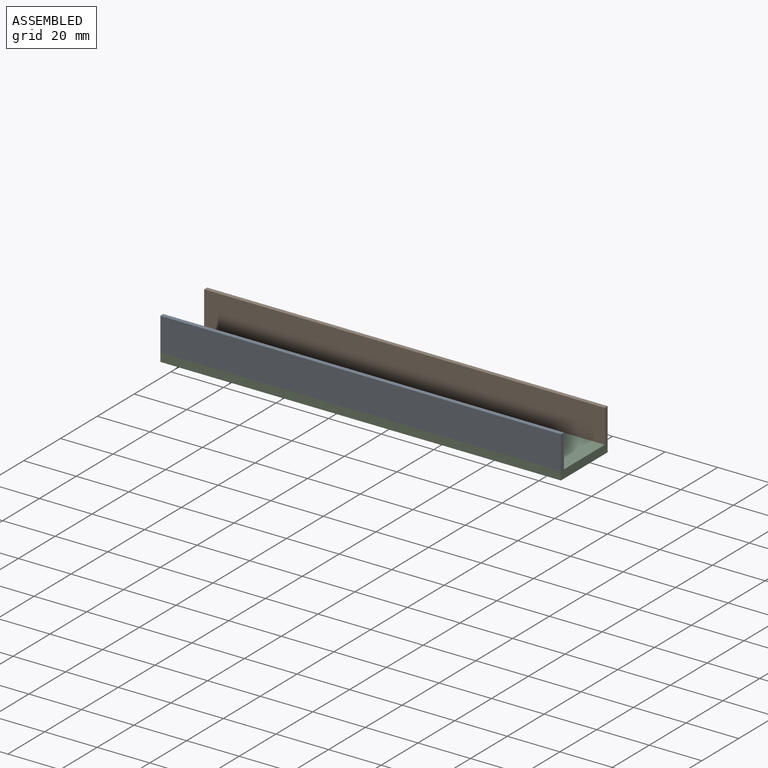
[diagram: assembled view]
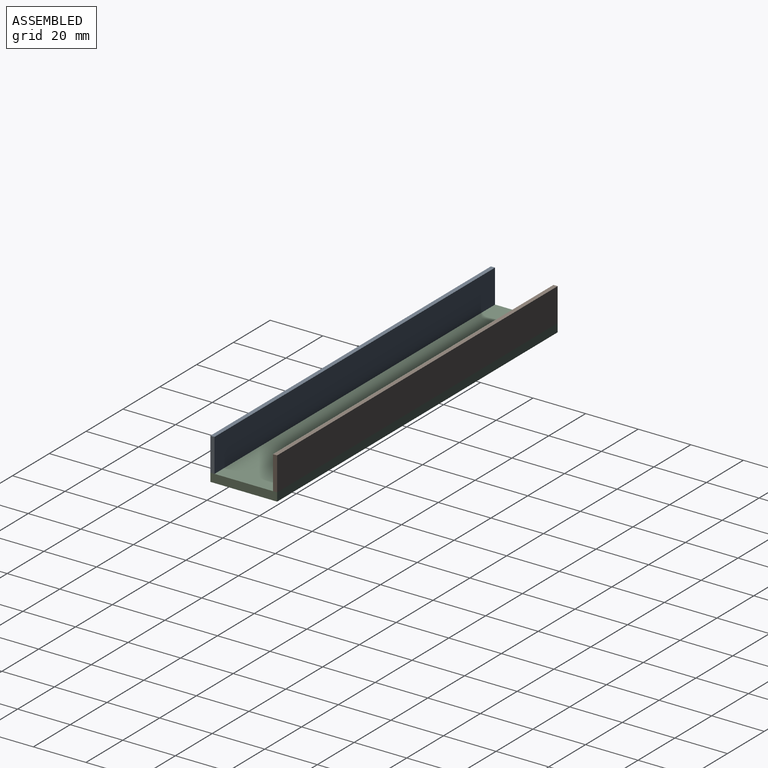
[diagram: assembled view, second angle]
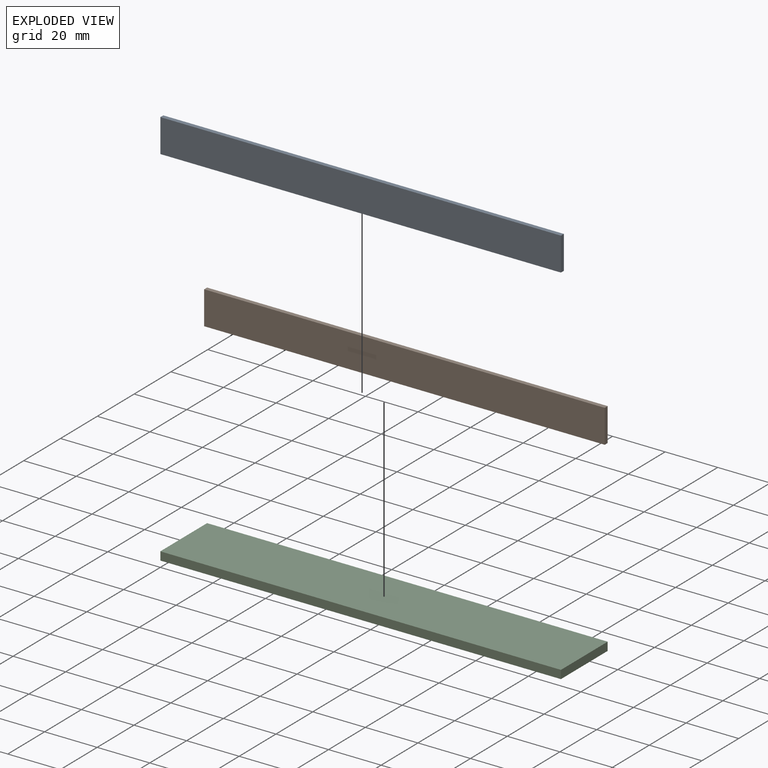
[diagram: exploded view]
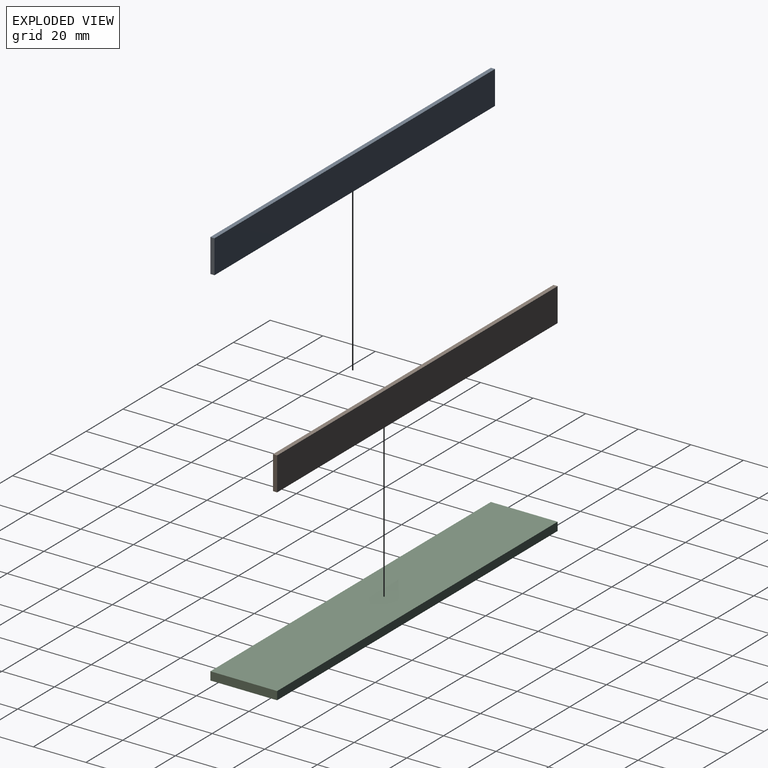
[diagram: exploded view, second angle]
ASSEMBLY  parts=3 mates=2
PART A: 6 faces, bbox 152.4x1.6x12.7 mm
  f0: plane 12.7x1.59mm, normal (-1,0,0), area 20.2mm2, adj f1,f3,f4,f5
  f1: plane 152.4x1.59mm, normal (0,0,-1), area 241.9mm2, adj f0,f2,f4,f5
  f2: plane 12.7x1.59mm, normal (1,0,0), area 20.2mm2, adj f1,f3,f4,f5
  f3: plane 152.4x1.59mm, normal (0,0,1), area 241.9mm2, adj f0,f2,f4,f5
  f4: plane 152.4x12.7mm, normal (0,-1,0), area 1935.5mm2, adj f0,f1,f2,f3
  f5: plane 152.4x12.7mm, normal (0,1,0), area 1935.5mm2, adj f0,f1,f2,f3
PART B: same geometry as A
PART C: 6 faces, bbox 152.4x25.4x3.2 mm
  f0: plane 25.4x3.18mm, normal (-1,0,0), area 80.6mm2, adj f1,f3,f4,f5
  f1: plane 152.4x3.18mm, normal (0,-1,0), area 483.9mm2, adj f0,f2,f4,f5
  f2: plane 25.4x3.18mm, normal (1,0,0), area 80.6mm2, adj f1,f3,f4,f5
  f3: plane 152.4x3.18mm, normal (0,1,0), area 483.9mm2, adj f0,f2,f4,f5
  f4: plane 152.4x25.4mm, normal (0,0,1), area 3871mm2, adj f0,f1,f2,f3
  f5: plane 152.4x25.4mm, normal (0,0,-1), area 3871mm2, adj f0,f1,f2,f3
PLACE A t=(0,1.59,3.18)mm
PLACE B t=(0,25.4,3.18)mm
PLACE C at identity
MATE fastened A.f1 <-> C.f4  axis (0,0,1) through (0,0,3.18)mm
MATE fastened B.f1 <-> C.f4  axis (0,0,1) through (0,25.4,3.18)mm
